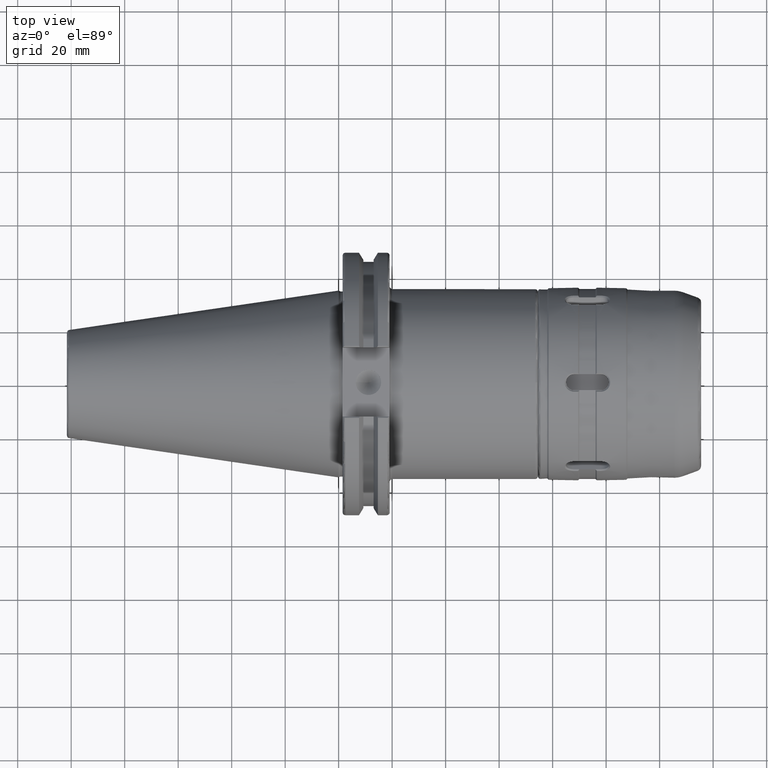
[diagram: clean part render]
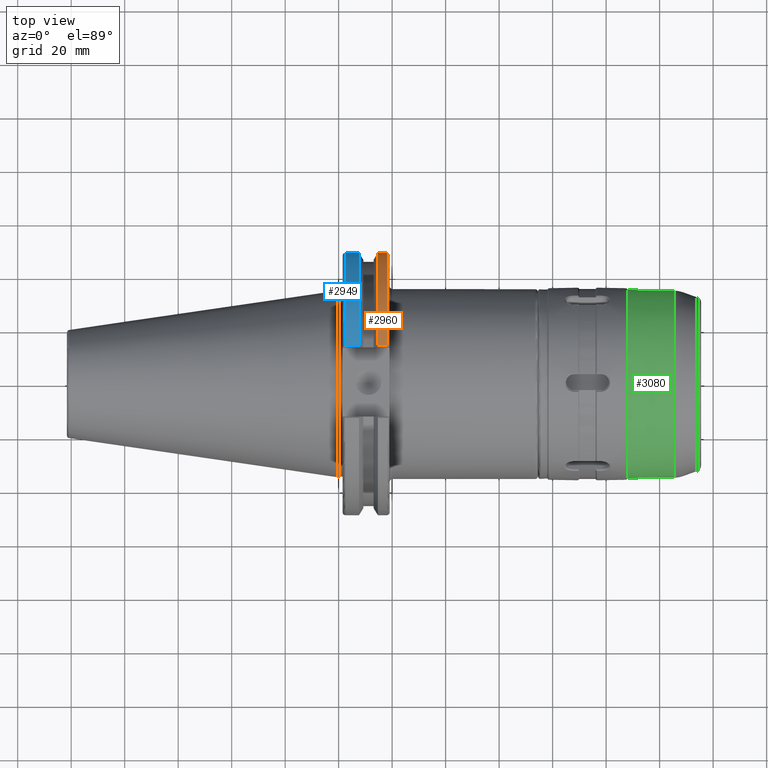
[diagram: same view with three faces highlighted in distinct colors, each labeled with its STEP entity id]
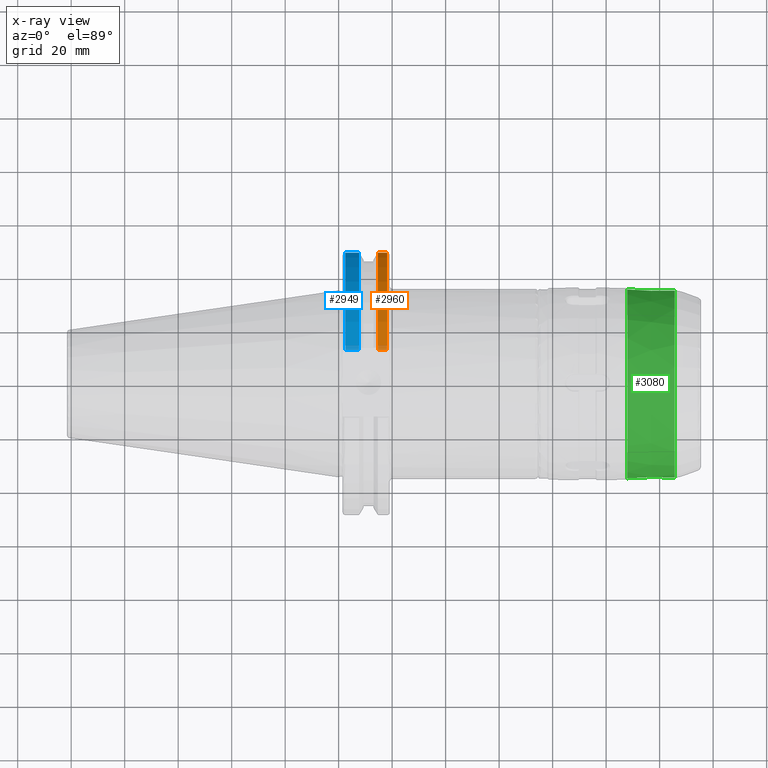
[diagram: x-ray of the same camera — body ghosted, the three highlighted faces saturated]
A machine part, top view with three faces highlighted in distinct colors.
The next image is the same camera in x-ray (body ghosted, the three faces saturated) — at least one of them is partly hidden behind the body in this view.
Their STEP definitions:

[orange] entity #2960 — the highlighted cylindrical surface (partial cylindrical patch) has radius 49.2125 mm, axis along (1, 0, 0).
#250=LINE('',#4535,#476);
#282=LINE('',#4765,#508);
#476=VECTOR('',#3614,10.);
#508=VECTOR('',#3710,10.);
#718=FACE_OUTER_BOUND('',#903,.T.);
#903=EDGE_LOOP('',(#2193,#2194,#2195,#2196));
#1076=CIRCLE('',#3220,49.2125);
#1091=CIRCLE('',#3257,49.2125);
#1269=VERTEX_POINT('',#4485);
#1270=VERTEX_POINT('',#4494);
#1280=VERTEX_POINT('',#4534);
#1329=VERTEX_POINT('',#4761);
#1575=EDGE_CURVE('',#1269,#1270,#1076,.T.);
#1587=EDGE_CURVE('',#1270,#1280,#250,.T.);
#1657=EDGE_CURVE('',#1329,#1269,#282,.T.);
#1659=EDGE_CURVE('',#1329,#1280,#1091,.T.);
#2193=ORIENTED_EDGE('',*,*,#1575,.F.);
#2194=ORIENTED_EDGE('',*,*,#1657,.F.);
#2195=ORIENTED_EDGE('',*,*,#1659,.T.);
#2196=ORIENTED_EDGE('',*,*,#1587,.F.);
#2884=CYLINDRICAL_SURFACE('',#3256,49.2125);
#2960=ADVANCED_FACE('',(#718),#2884,.T.);
#3220=AXIS2_PLACEMENT_3D('',#4495,#3601,#3602);
#3256=AXIS2_PLACEMENT_3D('',#4770,#3713,#3714);
#3257=AXIS2_PLACEMENT_3D('',#4771,#3715,#3716);
#3601=DIRECTION('center_axis',(1.,0.,0.));
#3602=DIRECTION('ref_axis',(0.,1.,-6.12323399573677E-17));
#3614=DIRECTION('',(-1.,0.,0.));
#3710=DIRECTION('',(1.,0.,0.));
#3713=DIRECTION('center_axis',(1.,0.,0.));
#3714=DIRECTION('ref_axis',(0.,1.,0.));
#3715=DIRECTION('center_axis',(1.,0.,0.));
#3716=DIRECTION('ref_axis',(0.,0.,-1.));
#4485=CARTESIAN_POINT('',(18.05,13.4317035994433,-47.3440544806494));
#4494=CARTESIAN_POINT('',(18.05,13.4317035994433,47.3440544806494));
#4495=CARTESIAN_POINT('Origin',(18.05,0.,0.));
#4534=CARTESIAN_POINT('',(14.6602090340487,13.4317035994433,47.3440544806494));
#4535=CARTESIAN_POINT('',(16.8551045170244,13.4317035994433,47.3440544806494));
#4761=CARTESIAN_POINT('',(14.6602090340487,13.4317035994433,-47.3440544806494));
#4765=CARTESIAN_POINT('',(16.8551045170244,13.4317035994433,-47.3440544806494));
#4770=CARTESIAN_POINT('Origin',(16.8551045170244,0.,0.));
#4771=CARTESIAN_POINT('Origin',(14.6602090340487,0.,0.));

[blue] entity #2949 — the highlighted cylindrical surface (partial cylindrical patch) has radius 49.2125 mm, axis along (1, 0, 0).
#270=LINE('',#4698,#496);
#272=LINE('',#4706,#498);
#496=VECTOR('',#3662,10.);
#498=VECTOR('',#3666,10.);
#707=FACE_OUTER_BOUND('',#891,.T.);
#891=EDGE_LOOP('',(#2141,#2142,#2143,#2144));
#1082=CIRCLE('',#3235,49.2125);
#1083=CIRCLE('',#3238,49.2125);
#1310=VERTEX_POINT('',#4670);
#1311=VERTEX_POINT('',#4679);
#1313=VERTEX_POINT('',#4697);
#1315=VERTEX_POINT('',#4705);
#1627=EDGE_CURVE('',#1310,#1311,#1082,.T.);
#1630=EDGE_CURVE('',#1311,#1313,#270,.T.);
#1633=EDGE_CURVE('',#1315,#1310,#272,.T.);
#1634=EDGE_CURVE('',#1313,#1315,#1083,.T.);
#2141=ORIENTED_EDGE('',*,*,#1627,.F.);
#2142=ORIENTED_EDGE('',*,*,#1633,.F.);
#2143=ORIENTED_EDGE('',*,*,#1634,.F.);
#2144=ORIENTED_EDGE('',*,*,#1630,.F.);
#2882=CYLINDRICAL_SURFACE('',#3237,49.2125);
#2949=ADVANCED_FACE('',(#707),#2882,.T.);
#3235=AXIS2_PLACEMENT_3D('',#4680,#3658,#3659);
#3237=AXIS2_PLACEMENT_3D('',#4704,#3664,#3665);
#3238=AXIS2_PLACEMENT_3D('',#4707,#3667,#3668);
#3658=DIRECTION('center_axis',(-1.,0.,0.));
#3659=DIRECTION('ref_axis',(0.,1.,-6.12323399573677E-17));
#3662=DIRECTION('',(1.,0.,0.));
#3664=DIRECTION('center_axis',(1.,0.,0.));
#3665=DIRECTION('ref_axis',(0.,1.,0.));
#3666=DIRECTION('',(-1.,0.,0.));
#3667=DIRECTION('center_axis',(1.,0.,0.));
#3668=DIRECTION('ref_axis',(0.,0.,-1.));
#4670=CARTESIAN_POINT('',(2.5,13.4317035994433,47.3440544806494));
#4679=CARTESIAN_POINT('',(2.5,13.4317035994433,-47.3440544806494));
#4680=CARTESIAN_POINT('Origin',(2.5,0.,0.));
#4697=CARTESIAN_POINT('',(7.60799096595128,13.4317035994433,-47.3440544806494));
#4698=CARTESIAN_POINT('',(4.55399548297564,13.4317035994433,-47.3440544806494));
#4704=CARTESIAN_POINT('Origin',(4.55399548297564,0.,0.));
#4705=CARTESIAN_POINT('',(7.60799096595128,13.4317035994433,47.3440544806494));
#4706=CARTESIAN_POINT('',(4.55399548297564,13.4317035994433,47.3440544806494));
#4707=CARTESIAN_POINT('Origin',(7.60799096595128,0.,0.));

[green] entity #3080 — the highlighted conical surface has half-angle 1.487 deg.
#220=CONICAL_SURFACE('',#3445,35.25,0.0259579869490154);
#442=LINE('',#6441,#668);
#668=VECTOR('',#4252,35.25);
#838=FACE_OUTER_BOUND('',#1028,.T.);
#1028=EDGE_LOOP('',(#2819,#2820,#2821,#2822,#2823));
#1167=CIRCLE('',#3440,35.0423000871868);
#1168=CIRCLE('',#3441,35.0423000871868);
#1171=CIRCLE('',#3446,35.5);
#1505=VERTEX_POINT('',#6428);
#1506=VERTEX_POINT('',#6430);
#1509=VERTEX_POINT('',#6440);
#1945=EDGE_CURVE('',#1505,#1506,#1167,.T.);
#1946=EDGE_CURVE('',#1506,#1505,#1168,.T.);
#1950=EDGE_CURVE('',#1506,#1509,#442,.T.);
#1951=EDGE_CURVE('',#1509,#1509,#1171,.T.);
#2819=ORIENTED_EDGE('',*,*,#1946,.F.);
#2820=ORIENTED_EDGE('',*,*,#1950,.T.);
#2821=ORIENTED_EDGE('',*,*,#1951,.T.);
#2822=ORIENTED_EDGE('',*,*,#1950,.F.);
#2823=ORIENTED_EDGE('',*,*,#1945,.F.);
#3080=ADVANCED_FACE('',(#838),#220,.T.);
#3440=AXIS2_PLACEMENT_3D('',#6431,#4239,#4240);
#3441=AXIS2_PLACEMENT_3D('',#6432,#4241,#4242);
#3445=AXIS2_PLACEMENT_3D('',#6439,#4250,#4251);
#3446=AXIS2_PLACEMENT_3D('',#6442,#4253,#4254);
#4239=DIRECTION('center_axis',(1.,0.,0.));
#4240=DIRECTION('ref_axis',(0.,-1.,3.06161699786838E-17));
#4241=DIRECTION('center_axis',(1.,0.,0.));
#4242=DIRECTION('ref_axis',(0.,-1.,3.06161699786838E-17));
#4250=DIRECTION('center_axis',(-1.,0.,0.));
#4251=DIRECTION('ref_axis',(0.,1.,0.));
#4252=DIRECTION('',(-0.999663110374247,-0.025955071891372,-3.17857957134081E-18));
#4253=DIRECTION('center_axis',(1.,0.,0.));
#4254=DIRECTION('ref_axis',(0.,0.,-1.));
#6428=CARTESIAN_POINT('',(51.1283741526824,-4.29144406365343E-15,35.0423000871868));
#6430=CARTESIAN_POINT('',(51.1283741526824,-35.0423000871868,-4.29144406365343E-15));
#6431=CARTESIAN_POINT('Origin',(51.1283741526824,0.,-5.36430507956679E-15));
#6432=CARTESIAN_POINT('Origin',(51.1283741526824,0.,-5.36430507956679E-15));
#6439=CARTESIAN_POINT('Origin',(43.1287838708181,0.,0.));
#6440=CARTESIAN_POINT('',(33.5,-35.5,-4.3474961369731E-15));
#6441=CARTESIAN_POINT('',(43.1287838708181,-35.25,-4.31687996699442E-15));
#6442=CARTESIAN_POINT('Origin',(33.5,0.,0.));